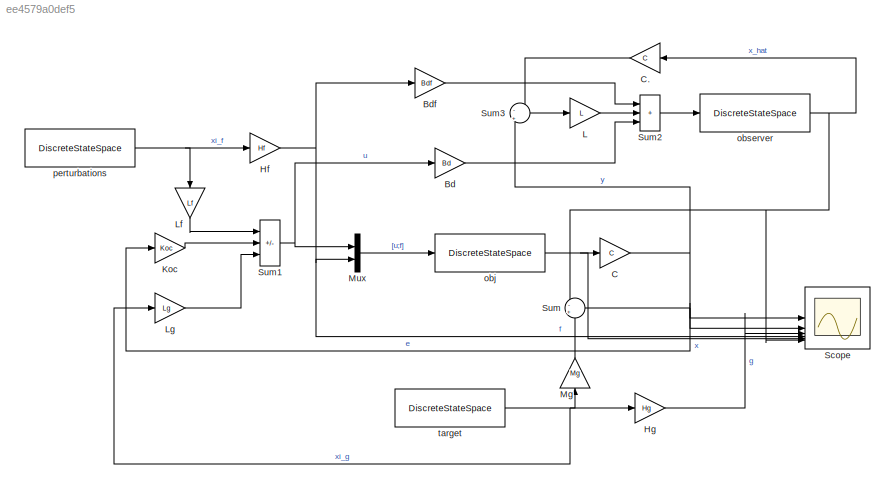
MODEL slx_ee4579a0def5
KIND model
CONFIG AbsTol = auto
CONFIG EnableMultiTasking = off
CONFIG FixedStep = auto
CONFIG MaxStep = auto
CONFIG MinStep = auto
CONFIG RelTol = 1e-3
CONFIG SampleTimeConstraint = Unconstrained
CONFIG SolverName = VariableStepAuto
CONFIG StartTime = 0.0
CONFIG StopTime = Tmdl
BLOCK [Gain] Bd
  Gain = Bd
  Multiplication = Matrix(K*u) (u vector)
BLOCK [Gain] Bdf
  Gain = Bdf
  Multiplication = Matrix(K*u) (u vector)
BLOCK [Gain] C
  Gain = C
  Multiplication = Matrix(K*u) (u vector)
BLOCK [Gain] C.
  Gain = C
  Multiplication = Matrix(K*u) (u vector)
  NameLocation = top
BLOCK [Gain] Hf
  Gain = Hf
  Multiplication = Matrix(K*u) (u vector)
BLOCK [Gain] Hg
  Gain = Hg
  Multiplication = Matrix(K*u) (u vector)
BLOCK [Gain] Koc
  Gain = Koc
  Multiplication = Matrix(K*u) (u vector)
BLOCK [Gain] L
  Gain = L
  Multiplication = Matrix(K*u) (u vector)
BLOCK [Gain] Lf
  Gain = Lf
  Multiplication = Matrix(K*u) (u vector)
  NameLocation = left
BLOCK [Gain] Lg
  Gain = Lg
  Multiplication = Matrix(K*u) (u vector)
BLOCK [Gain] Mg
  Gain = Mg
  Multiplication = Matrix(K*u) (u vector)
  NameLocation = right
BLOCK [Mux] Mux
  DisplayOption = bar
  Inputs = 2
BLOCK [Scope] Scope
  Floating = off
  NumInputPorts = 6
  ScopeSpecificationString = Simulink.scopes.TimeScopeBlockCfg('CurrentConfiguration', extmgr.ConfigurationSet(extmgr.Configuration('Core','General UI',true),extmgr.Configuration('Core','Source UI',true),extmgr.Configuration('Sources','WiredSimulink',true,'DataLoggingVariableName','out','DataLogging',true,'DataLoggingSaveFormat','StructureWithTime'),extmgr.Configuration('Visuals','Time Domain',true,'SerializedDisplays',{struc...<+1653ch>
BLOCK [Sum] Sum
  Inputs = -+
BLOCK [Sum] Sum1
  IconShape = rectangular
  Inputs = |--+
BLOCK [Sum] Sum2
  IconShape = rectangular
  Inputs = +++
BLOCK [Sum] Sum3
  Inputs = -|+
BLOCK [DiscreteStateSpace] obj
  A = Ad
  B = [Bd Bdf]
  C = eye(2)
  D = [0 0;0 0]
  InitialCondition = x_initial
  SampleTime = T
BLOCK [DiscreteStateSpace] observer
  A = Ad
  B = eye(2)
  C = eye(2)
  D = [0 0;0 0]
  InitialCondition = x_hat_initial
  SampleTime = T
BLOCK [DiscreteStateSpace] perturbations
  A = Gf
  B = [0;0]
  C = eye(2)
  D = [0;0]
  InitialCondition = xif_initial
  SampleTime = T
BLOCK [DiscreteStateSpace] target
  A = Gg
  B = zeros([2 1])
  C = eye(2)
  D = [0;0]
  InitialCondition = xi_initial
  SampleTime = T
LINE Bd:1 -> Sum2:3
LINE Bdf:1 -> Sum2:1
LINE C.:1 -> Sum3:1
NET C:1 -> Scope:1, Sum3:2
NET Hf:1 -> Bdf:1, Mux:2, Scope:4
LINE Hg:1 -> Scope:3
LINE Koc:1 -> Sum1:2
LINE L:1 -> Sum2:2
LINE Lf:1 -> Sum1:1
LINE Lg:1 -> Sum1:3
LINE Mg:1 -> Sum:2
LINE Mux:1 -> obj:1
NET Sum1:1 -> Bd:1, Mux:1
LINE Sum2:1 -> observer:1
LINE Sum3:1 -> L:1
NET Sum:1 -> Koc:1, Scope:2
NET obj:1 -> C:1, Scope:5
NET observer:1 -> C.:1, Scope:6, Sum:1
NET perturbations:1 -> Hf:1, Lf:1
NET target:1 -> Hg:1, Lg:1, Mg:1
note: NET lines group one-source signal fan-out (src -> all destinations, sorted); 1:1 wires keep LINE
